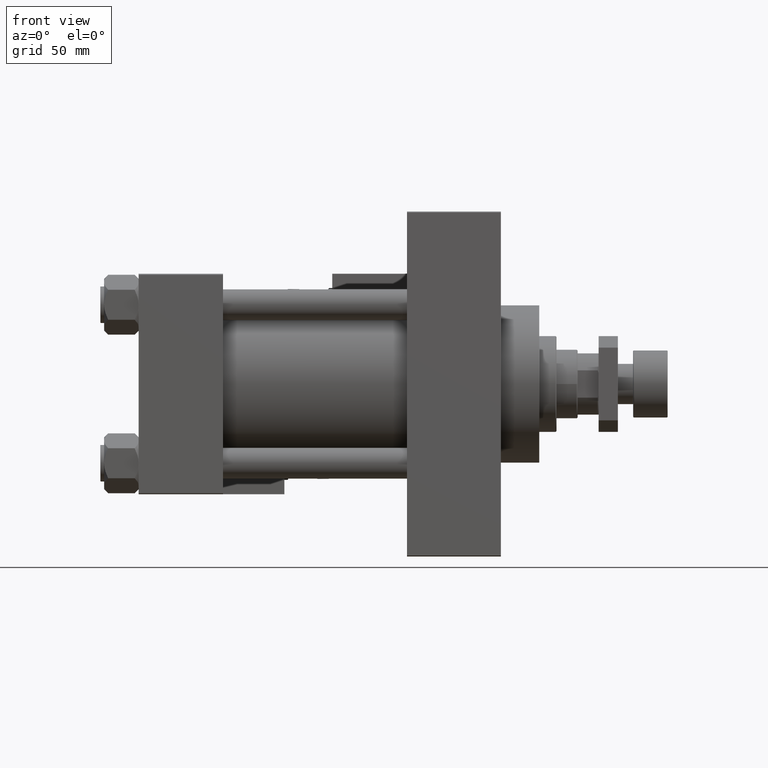
[diagram: clean part render]
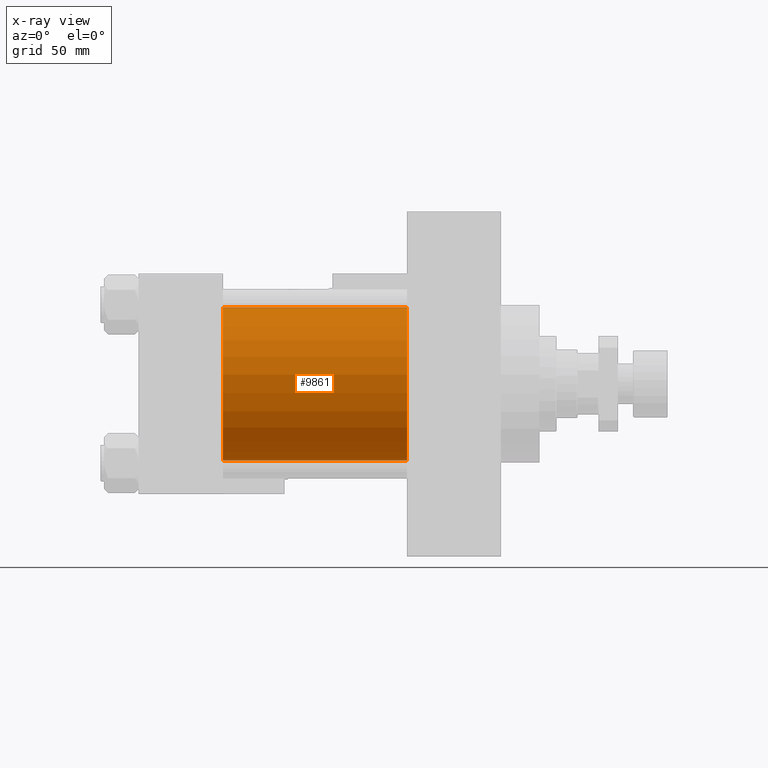
[diagram: x-ray — body ghosted, one internal face saturated and labeled with its STEP entity id]
A machine part, front view, then the same camera in x-ray: the body is ghosted and one INTERNAL B-rep face — a face not visible from any outside direction — is saturated and labeled: STEP entity #9861.
In plain terms, the highlighted cylindrical surface (partial cylindrical patch) has radius 40 mm, axis along (-1, -0, -0).
Its self-contained STEP definition (entity closure, byte-faithful):
#454 = CARTESIAN_POINT ( 'NONE',  ( 140.0000000000000000, 2.296501982624201990E-15, -40.00000000000000000 ) ) ;
#1486 = LINE ( 'NONE', #18069, #49456 ) ;
#2043 = EDGE_CURVE ( 'NONE', #34510, #23257, #50671, .T. ) ;
#3003 = CARTESIAN_POINT ( 'NONE',  ( 44.00000000000000000, -2.602085213965210642E-15, 40.00000000000000000 ) ) ;
#4868 = ORIENTED_EDGE ( 'NONE', *, *, #34792, .F. ) ;
#5917 = LINE ( 'NONE', #51396, #31598 ) ;
#9300 = EDGE_LOOP ( 'NONE', ( #44106, #44334, #13028, #4868 ) ) ;
#9861 = ADVANCED_FACE ( 'NONE', ( #11022 ), #47798, .F. ) ;
#10750 = DIRECTION ( 'NONE',  ( 0.000000000000000000, 0.000000000000000000, 1.000000000000000000 ) ) ;
#11022 = FACE_OUTER_BOUND ( 'NONE', #9300, .T. ) ;
#13028 = ORIENTED_EDGE ( 'NONE', *, *, #46171, .F. ) ;
#13636 = DIRECTION ( 'NONE',  ( 1.000000000000000000, 0.000000000000000000, 0.000000000000000000 ) ) ;
#15351 = DIRECTION ( 'NONE',  ( -1.000000000000000000, -0.000000000000000000, -0.000000000000000000 ) ) ;
#17612 = AXIS2_PLACEMENT_3D ( 'NONE', #17718, #13636, #18256 ) ;
#17718 = CARTESIAN_POINT ( 'NONE',  ( 140.0000000000000000, -2.602085213965210642E-15, 0.000000000000000000 ) ) ;
#18069 = CARTESIAN_POINT ( 'NONE',  ( 140.0000000000000000, 2.296501982624201990E-15, -40.00000000000000000 ) ) ;
#18256 = DIRECTION ( 'NONE',  ( 0.000000000000000000, 0.000000000000000000, -1.000000000000000000 ) ) ;
#19691 = CARTESIAN_POINT ( 'NONE',  ( 140.0000000000000000, -2.602085213965210642E-15, 0.000000000000000000 ) ) ;
#19774 = DIRECTION ( 'NONE',  ( 1.000000000000000000, 0.000000000000000000, 0.000000000000000000 ) ) ;
#20273 = VERTEX_POINT ( 'NONE', #34496 ) ;
#23257 = VERTEX_POINT ( 'NONE', #454 ) ;
#25988 = CIRCLE ( 'NONE', #51250, 40.00000000000000000 ) ;
#26233 = DIRECTION ( 'NONE',  ( -1.000000000000000000, -0.000000000000000000, -0.000000000000000000 ) ) ;
#28227 = CARTESIAN_POINT ( 'NONE',  ( 44.00000000000000000, -2.602085213965210642E-15, 0.000000000000000000 ) ) ;
#30693 = DIRECTION ( 'NONE',  ( -1.000000000000000000, -0.000000000000000000, -0.000000000000000000 ) ) ;
#31598 = VECTOR ( 'NONE', #30693, 1000.000000000000000 ) ;
#34496 = CARTESIAN_POINT ( 'NONE',  ( 44.00000000000000000, 2.296501982624201990E-15, -40.00000000000000000 ) ) ;
#34510 = VERTEX_POINT ( 'NONE', #50044 ) ;
#34792 = EDGE_CURVE ( 'NONE', #34510, #36967, #5917, .T. ) ;
#36967 = VERTEX_POINT ( 'NONE', #3003 ) ;
#44106 = ORIENTED_EDGE ( 'NONE', *, *, #2043, .T. ) ;
#44334 = ORIENTED_EDGE ( 'NONE', *, *, #44706, .T. ) ;
#44706 = EDGE_CURVE ( 'NONE', #23257, #20273, #1486, .T. ) ;
#45691 = AXIS2_PLACEMENT_3D ( 'NONE', #19691, #15351, #10750 ) ;
#46171 = EDGE_CURVE ( 'NONE', #36967, #20273, #25988, .T. ) ;
#47798 = CYLINDRICAL_SURFACE ( 'NONE', #45691, 40.00000000000000000 ) ;
#49456 = VECTOR ( 'NONE', #26233, 1000.000000000000000 ) ;
#50044 = CARTESIAN_POINT ( 'NONE',  ( 140.0000000000000000, -2.602085213965210642E-15, 40.00000000000000000 ) ) ;
#50671 = CIRCLE ( 'NONE', #17612, 40.00000000000000000 ) ;
#51250 = AXIS2_PLACEMENT_3D ( 'NONE', #28227, #19774, #52769 ) ;
#51396 = CARTESIAN_POINT ( 'NONE',  ( 140.0000000000000000, -2.602085213965210642E-15, 40.00000000000000000 ) ) ;
#52769 = DIRECTION ( 'NONE',  ( 0.000000000000000000, 0.000000000000000000, -1.000000000000000000 ) ) ;